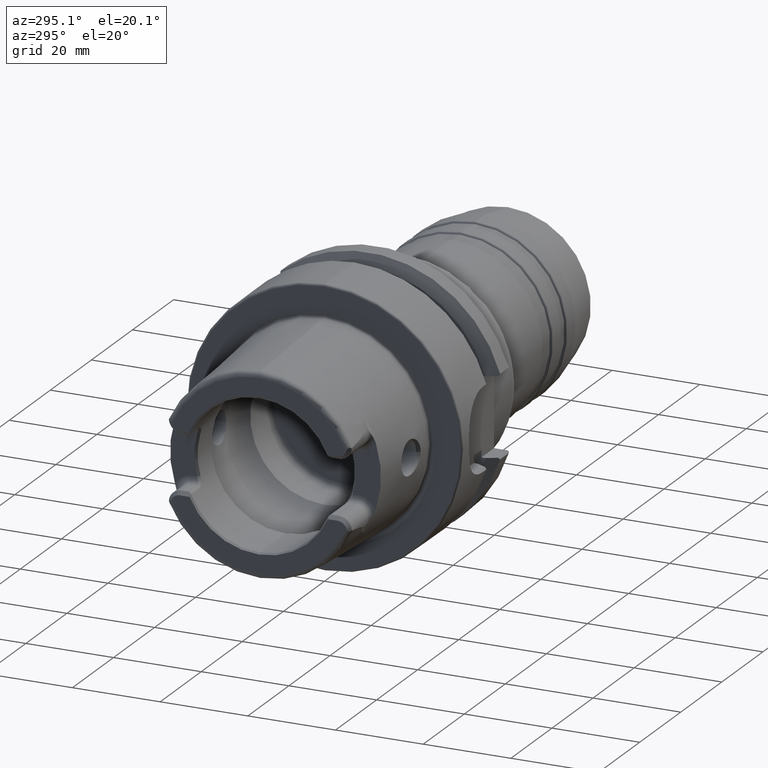
[diagram: clean part render]
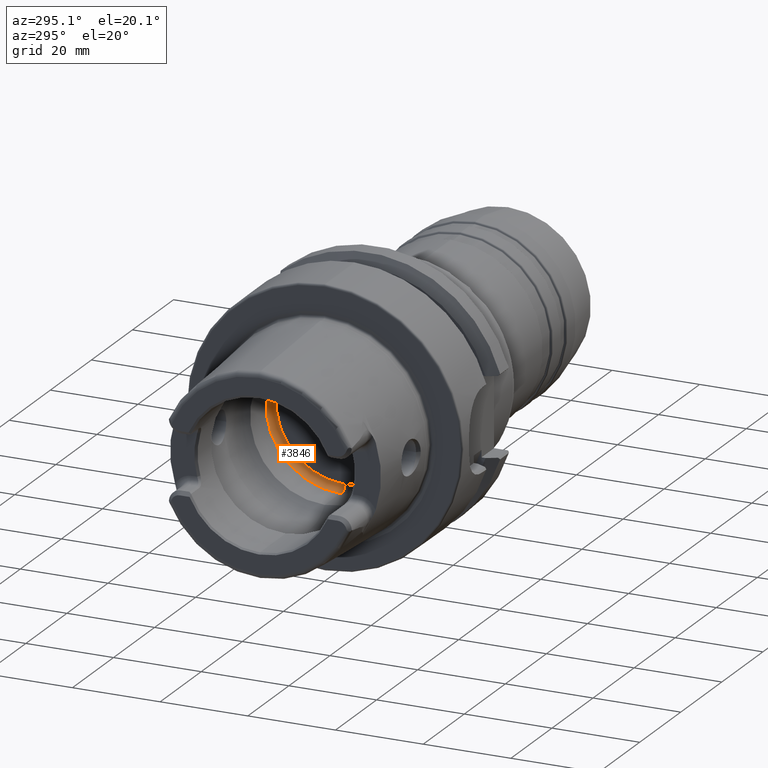
[diagram: same view with one face highlighted and labeled with its STEP entity id]
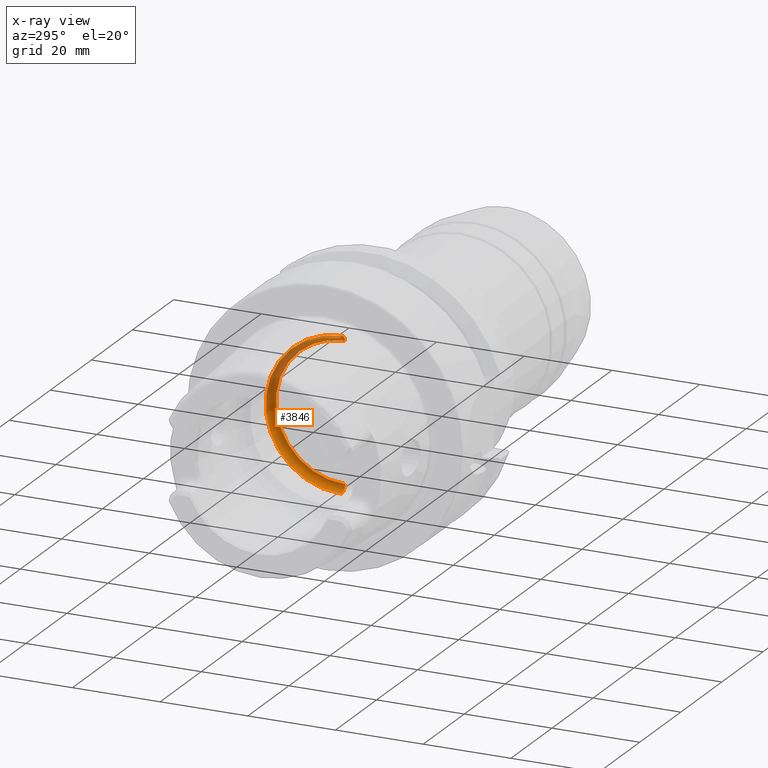
[diagram: x-ray of the same camera — body ghosted, the highlighted face saturated]
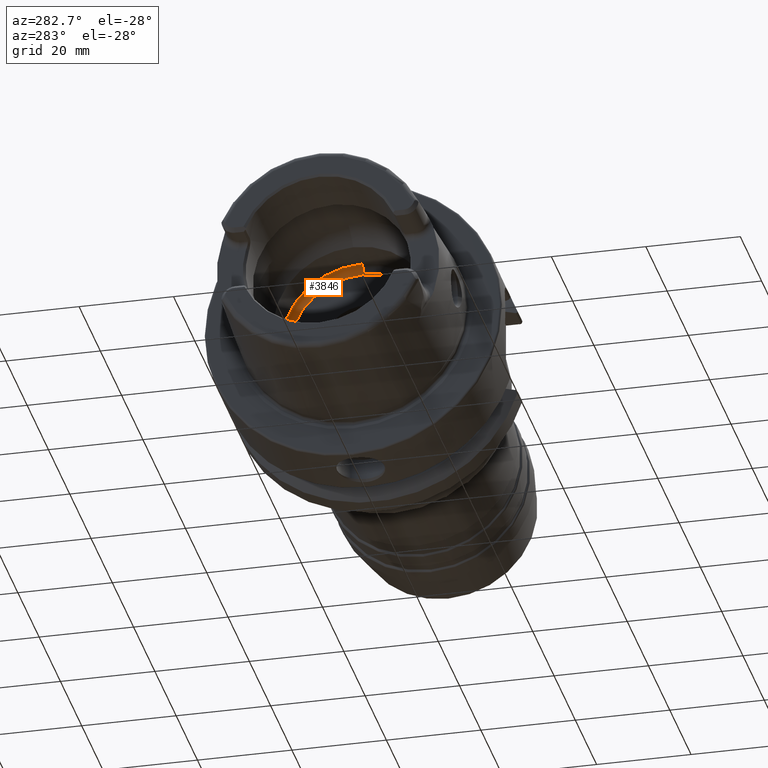
[diagram: same view with one face highlighted and labeled with its STEP entity id]
A machine part, auxiliary view. The second image highlights one B-rep face of the part: STEP entity #3846.
The next image is the same camera in x-ray: the body ghosted, the highlighted face saturated — about 38% of this face is hidden behind the body in this view.
A second angle (auxiliary view) of the same face is appended — the face is thin or edge-on in the first view.
In plain terms, the highlighted toroidal blend (fillet) surface has major radius 15.75 mm and minor (blend) radius 1.5 mm.
Its self-contained STEP definition (entity closure, byte-faithful):
#196=CARTESIAN_POINT('',(7.670843802411E0,0.E0,0.E0));
#197=DIRECTION('',(1.E0,0.E0,0.E0));
#198=DIRECTION('',(0.E0,0.E0,-1.E0));
#199=AXIS2_PLACEMENT_3D('',#196,#197,#198);
#333=CARTESIAN_POINT('',(8.5E0,0.E0,-1.575E1));
#334=DIRECTION('',(0.E0,1.E0,0.E0));
#335=DIRECTION('',(1.E0,0.E0,0.E0));
#336=AXIS2_PLACEMENT_3D('',#333,#334,#335);
#343=CARTESIAN_POINT('',(8.5E0,0.E0,1.575E1));
#344=DIRECTION('',(0.E0,-1.E0,0.E0));
#345=DIRECTION('',(1.E0,0.E0,0.E0));
#346=AXIS2_PLACEMENT_3D('',#343,#344,#345);
#348=CARTESIAN_POINT('',(1.E1,0.E0,0.E0));
#349=DIRECTION('',(1.E0,0.E0,0.E0));
#350=DIRECTION('',(0.E0,0.E0,-1.E0));
#351=AXIS2_PLACEMENT_3D('',#348,#349,#350);
#2998=CARTESIAN_POINT('',(7.670843802411E0,0.E0,-1.7E1));
#2999=VERTEX_POINT('',#2998);
#3000=CARTESIAN_POINT('',(7.670843802411E0,0.E0,1.7E1));
#3001=VERTEX_POINT('',#3000);
#3002=CARTESIAN_POINT('',(1.E1,0.E0,-1.575E1));
#3003=CARTESIAN_POINT('',(1.E1,0.E0,1.575E1));
#3004=VERTEX_POINT('',#3002);
#3005=VERTEX_POINT('',#3003);
#3834=CARTESIAN_POINT('',(8.5E0,0.E0,0.E0));
#3835=DIRECTION('',(1.E0,0.E0,0.E0));
#3836=DIRECTION('',(0.E0,0.E0,1.E0));
#3837=AXIS2_PLACEMENT_3D('',#3834,#3835,#3836);
#3838=TOROIDAL_SURFACE('',#3837,1.575E1,1.5E0);
#3839=ORIENTED_EDGE('',*,*,#3743,.T.);
#3840=ORIENTED_EDGE('',*,*,#3829,.F.);
#3842=ORIENTED_EDGE('',*,*,#3841,.F.);
#3843=ORIENTED_EDGE('',*,*,#3825,.T.);
#3844=EDGE_LOOP('',(#3839,#3840,#3842,#3843));
#3845=FACE_OUTER_BOUND('',#3844,.F.);
#3846=ADVANCED_FACE('',(#3845),#3838,.F.);
#200=CIRCLE('',#199,1.7E1);
#337=CIRCLE('',#336,1.5E0);
#347=CIRCLE('',#346,1.5E0);
#352=CIRCLE('',#351,1.575E1);
#3743=EDGE_CURVE('',#2999,#3001,#200,.T.);
#3825=EDGE_CURVE('',#3004,#2999,#337,.T.);
#3829=EDGE_CURVE('',#3005,#3001,#347,.T.);
#3841=EDGE_CURVE('',#3004,#3005,#352,.T.);